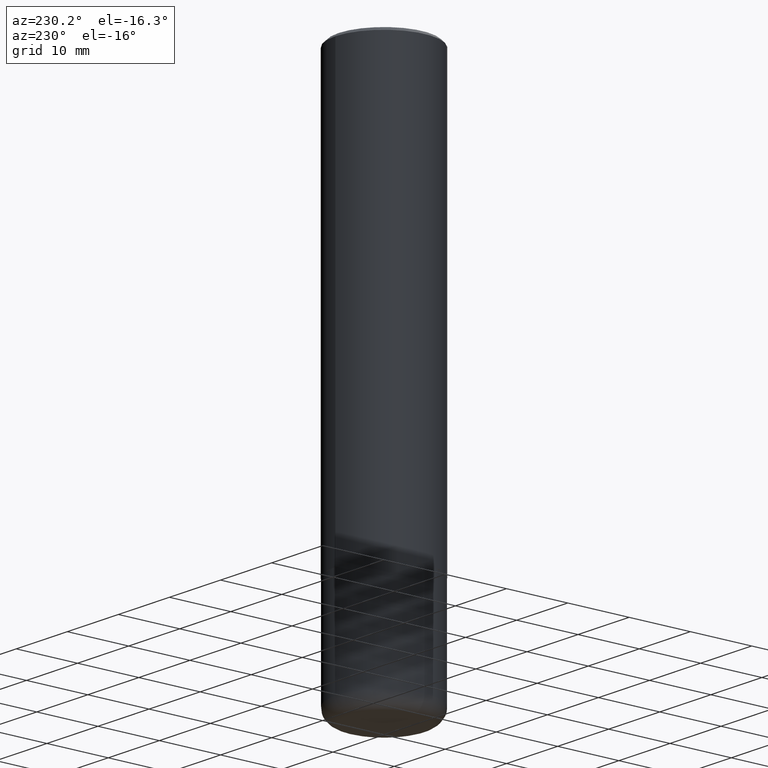
[diagram: clean part render]
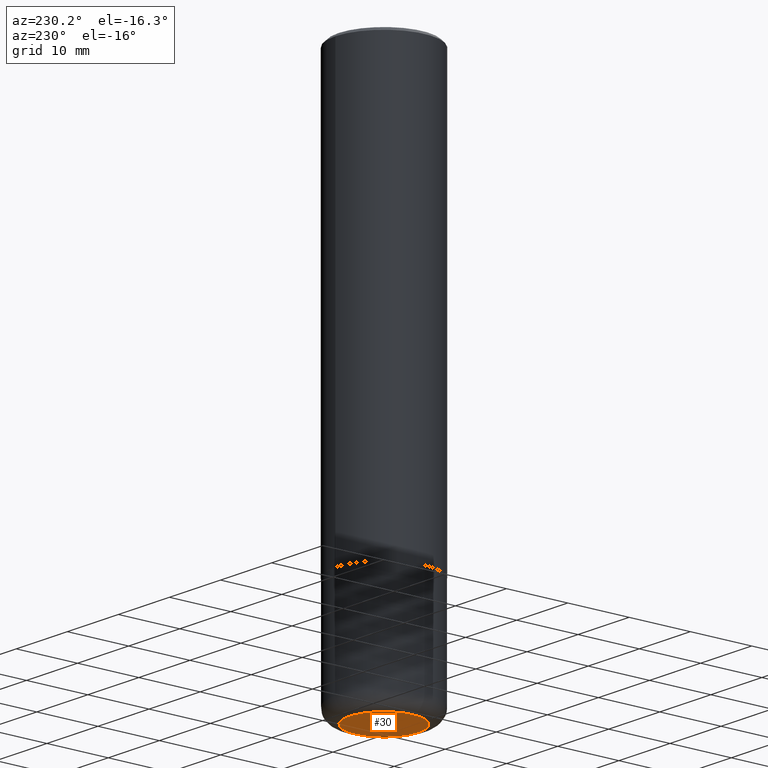
[diagram: same view with one face highlighted and labeled with its STEP entity id]
A machine part, auxiliary view. The second image highlights one B-rep face of the part: STEP entity #30.
In plain terms, the highlighted planar face has unit normal (0, -0, -1).
Its self-contained STEP definition (entity closure, byte-faithful):
#21 = EDGE_LOOP ( 'NONE', ( #203, #313 ) ) ;
#30 = ADVANCED_FACE ( 'NONE', ( #92 ), #58, .T. ) ;
#58 = PLANE ( 'NONE',  #322 ) ;
#59 = CARTESIAN_POINT ( 'NONE',  ( -0.2225000000000000033, -1.016236620754480236E-14, -3.499999999999999112 ) ) ;
#92 = FACE_OUTER_BOUND ( 'NONE', #21, .T. ) ;
#115 = VERTEX_POINT ( 'NONE', #257 ) ;
#146 = CIRCLE ( 'NONE', #183, 0.2225000000000000033 ) ;
#183 = AXIS2_PLACEMENT_3D ( 'NONE', #357, #320, #194 ) ;
#194 = DIRECTION ( 'NONE',  ( 1.000000000000000000, -6.982962677686269077E-15, 0.000000000000000000 ) ) ;
#203 = ORIENTED_EDGE ( 'NONE', *, *, #314, .F. ) ;
#219 = CARTESIAN_POINT ( 'NONE',  ( 1.456070253248337008E-28, -3.625606728355578380E-15, -3.499999999999999112 ) ) ;
#222 = AXIS2_PLACEMENT_3D ( 'NONE', #399, #235, #365 ) ;
#235 = DIRECTION ( 'NONE',  ( -2.445468806185136597E-29, 3.491481338843145583E-15, 1.000000000000000000 ) ) ;
#257 = CARTESIAN_POINT ( 'NONE',  ( 0.2225000000000000033, -1.377389388173620116E-14, -3.499999999999999112 ) ) ;
#282 = EDGE_CURVE ( 'NONE', #378, #115, #409, .T. ) ;
#313 = ORIENTED_EDGE ( 'NONE', *, *, #282, .F. ) ;
#314 = EDGE_CURVE ( 'NONE', #115, #378, #146, .T. ) ;
#320 = DIRECTION ( 'NONE',  ( -2.445468806185136597E-29, 3.491481338843145583E-15, 1.000000000000000000 ) ) ;
#322 = AXIS2_PLACEMENT_3D ( 'NONE', #219, #412, #352 ) ;
#352 = DIRECTION ( 'NONE',  ( -1.000000000000000000, 6.982962677686265922E-15, -4.876176775795935793E-29 ) ) ;
#357 = CARTESIAN_POINT ( 'NONE',  ( 8.559140821647976968E-29, -1.222018468595100619E-14, -3.499999999999999112 ) ) ;
#365 = DIRECTION ( 'NONE',  ( 1.000000000000000000, -6.982962677686269077E-15, 0.000000000000000000 ) ) ;
#378 = VERTEX_POINT ( 'NONE', #59 ) ;
#399 = CARTESIAN_POINT ( 'NONE',  ( 8.559140821647976968E-29, -1.222018468595100619E-14, -3.499999999999999112 ) ) ;
#409 = CIRCLE ( 'NONE', #222, 0.2225000000000000033 ) ;
#412 = DIRECTION ( 'NONE',  ( 2.438088387897960049E-29, -3.491481338843145188E-15, -1.000000000000000000 ) ) ;